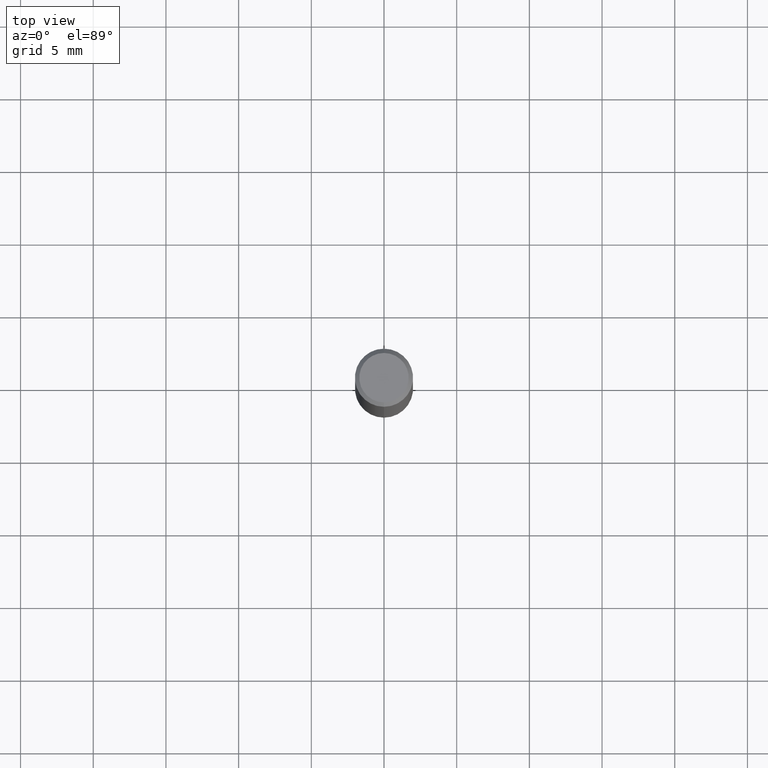
[diagram: clean part render]
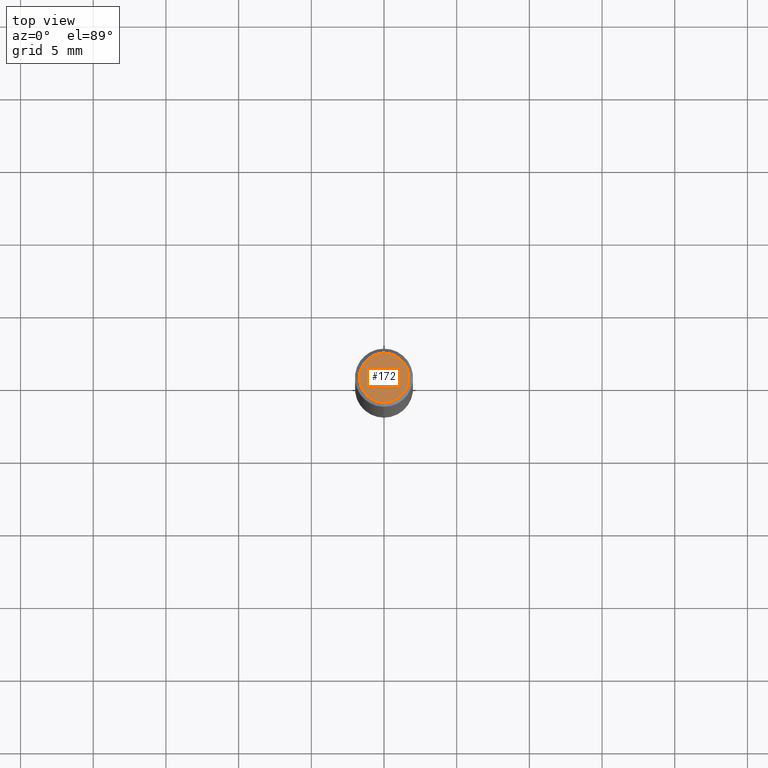
[diagram: same view with one face highlighted and labeled with its STEP entity id]
A machine part, top view. The second image highlights one B-rep face of the part: STEP entity #172.
In plain terms, the highlighted planar face has unit normal (-0, 0, 1).
Its self-contained STEP definition (entity closure, byte-faithful):
#104=VERTEX_POINT('',#231);
#106=VERTEX_POINT('',#233);
#136=EDGE_CURVE('',#104,#106,#268,.T.);
#172=ADVANCED_FACE('',(#309),#310,.T.);
#186=EDGE_CURVE('',#106,#104,#325,.T.);
#231=CARTESIAN_POINT('',(2.08183080149804E-016,-1.7,0.0));
#233=CARTESIAN_POINT('',(0.0,1.7,0.0));
#268=CIRCLE('',#417,1.7);
#309=FACE_OUTER_BOUND('',#467,.T.);
#310=PLANE('',#468);
#325=CIRCLE('',#486,1.7);
#417=AXIS2_PLACEMENT_3D('',#566,#567,#568);
#467=EDGE_LOOP('',(#618,#619));
#468=AXIS2_PLACEMENT_3D('',#620,#621,#622);
#486=AXIS2_PLACEMENT_3D('',#641,#642,#643);
#566=CARTESIAN_POINT('',(0.0,0.0,0.0));
#567=DIRECTION('',(0.0,0.0,-1.0));
#568=DIRECTION('',(0.0,1.0,0.0));
#618=ORIENTED_EDGE('',*,*,#186,.F.);
#619=ORIENTED_EDGE('',*,*,#136,.F.);
#620=CARTESIAN_POINT('',(0.0,0.85,0.0));
#621=DIRECTION('',(-0.0,0.0,1.0));
#622=DIRECTION('',(0.0,-1.0,0.0));
#641=CARTESIAN_POINT('',(0.0,0.0,0.0));
#642=DIRECTION('',(0.0,0.0,-1.0));
#643=DIRECTION('',(0.0,1.0,0.0));